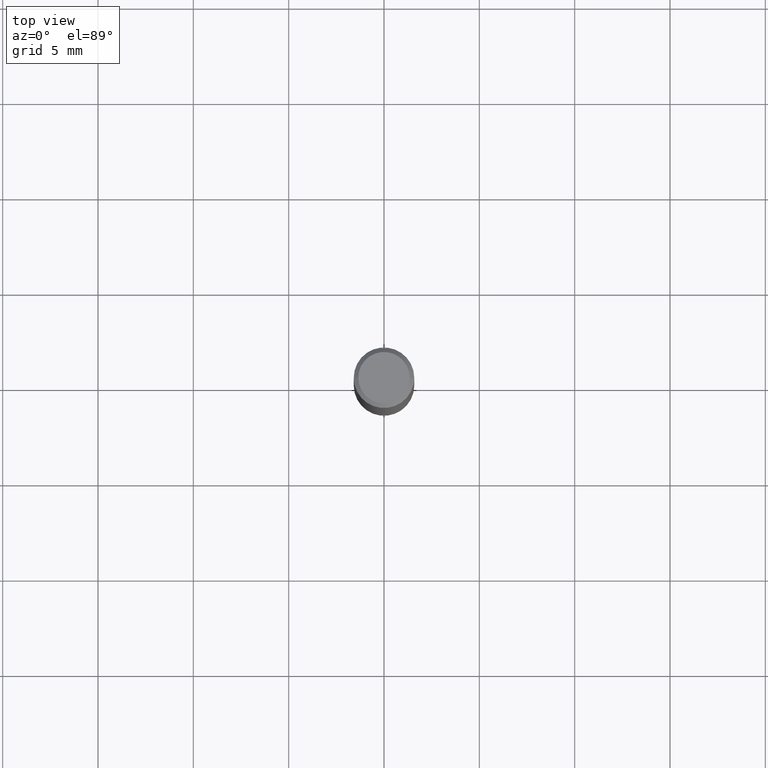
[diagram: clean part render]
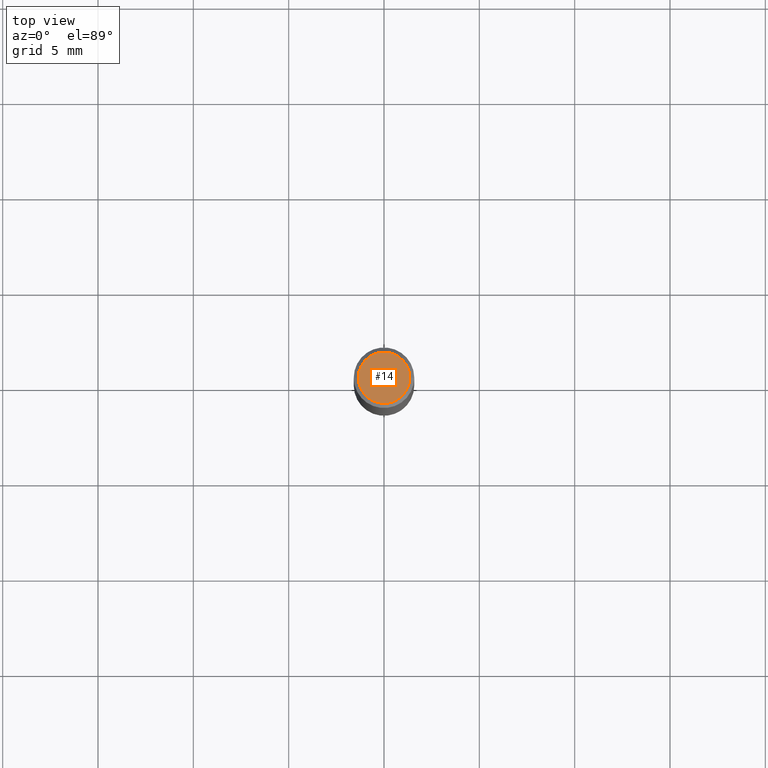
[diagram: same view with one face highlighted and labeled with its STEP entity id]
A machine part, top view. The second image highlights one B-rep face of the part: STEP entity #14.
In plain terms, the highlighted planar face has unit normal (0, -0, -1).
Its self-contained STEP definition (entity closure, byte-faithful):
#14 = ADVANCED_FACE ( 'NONE', ( #433 ), #475, .F. ) ;
#53 = EDGE_LOOP ( 'NONE', ( #557, #187 ) ) ;
#89 = AXIS2_PLACEMENT_3D ( 'NONE', #466, #402, #261 ) ;
#109 = CARTESIAN_POINT ( 'NONE',  ( -0.05312499999999999861, 3.873362110279099094E-16, -5.787680772773044021E-18 ) ) ;
#145 = AXIS2_PLACEMENT_3D ( 'NONE', #301, #255, #437 ) ;
#187 = ORIENTED_EDGE ( 'NONE', *, *, #575, .T. ) ;
#203 = EDGE_CURVE ( 'NONE', #512, #279, #515, .T. ) ;
#255 = DIRECTION ( 'NONE',  ( -2.445468806185136597E-29, 3.491481338843145583E-15, 1.000000000000000000 ) ) ;
#261 = DIRECTION ( 'NONE',  ( 1.000000000000000000, -6.982962677686266711E-15, 4.875930095424100059E-29 ) ) ;
#266 = AXIS2_PLACEMENT_3D ( 'NONE', #394, #395, #568 ) ;
#279 = VERTEX_POINT ( 'NONE', #291 ) ;
#291 = CARTESIAN_POINT ( 'NONE',  ( 0.05312499999999999861, -4.129888592719939842E-16, -5.787680772767651417E-18 ) ) ;
#301 = CARTESIAN_POINT ( 'NONE',  ( 1.415359278996747967E-46, -2.020757941330909984E-32, -5.787680772770392401E-18 ) ) ;
#394 = CARTESIAN_POINT ( 'NONE',  ( 7.076796394983739835E-47, -1.010378970665454992E-32, -2.893840386385196200E-18 ) ) ;
#395 = DIRECTION ( 'NONE',  ( 2.438088387897960049E-29, -3.491481338843145188E-15, -1.000000000000000000 ) ) ;
#402 = DIRECTION ( 'NONE',  ( -2.445468806185136597E-29, 3.491481338843145583E-15, 1.000000000000000000 ) ) ;
#433 = FACE_OUTER_BOUND ( 'NONE', #53, .T. ) ;
#437 = DIRECTION ( 'NONE',  ( 1.000000000000000000, -6.982962677686266711E-15, 4.875930095424100059E-29 ) ) ;
#466 = CARTESIAN_POINT ( 'NONE',  ( 1.415359278996747967E-46, -2.020757941330909984E-32, -5.787680772770392401E-18 ) ) ;
#475 = PLANE ( 'NONE',  #266 ) ;
#512 = VERTEX_POINT ( 'NONE', #109 ) ;
#515 = CIRCLE ( 'NONE', #89, 0.05312499999999999861 ) ;
#557 = ORIENTED_EDGE ( 'NONE', *, *, #203, .T. ) ;
#568 = DIRECTION ( 'NONE',  ( -1.000000000000000000, 6.982962677686265922E-15, -4.876176775795935793E-29 ) ) ;
#575 = EDGE_CURVE ( 'NONE', #279, #512, #580, .T. ) ;
#580 = CIRCLE ( 'NONE', #145, 0.05312499999999999861 ) ;